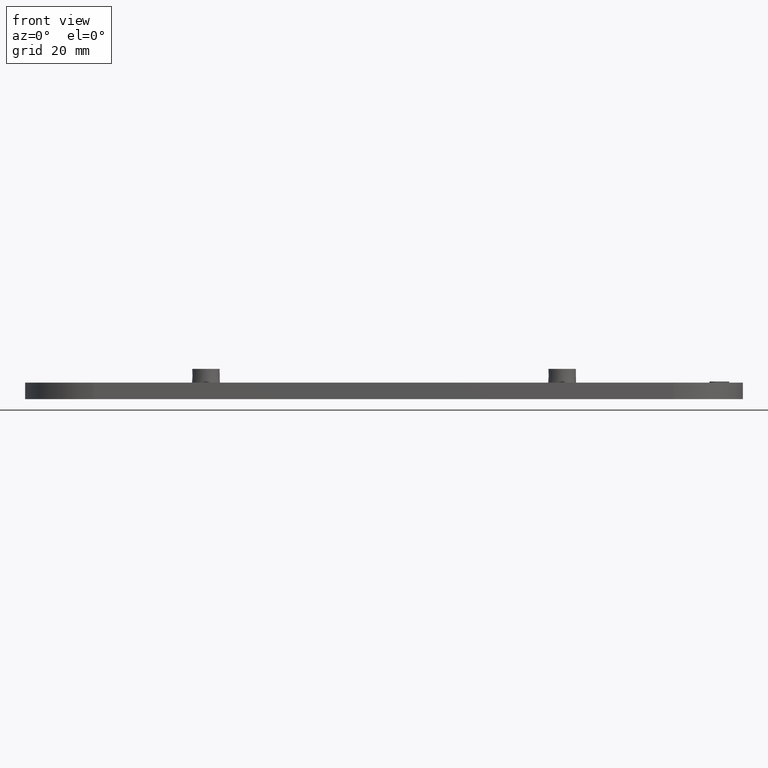
[diagram: clean part render]
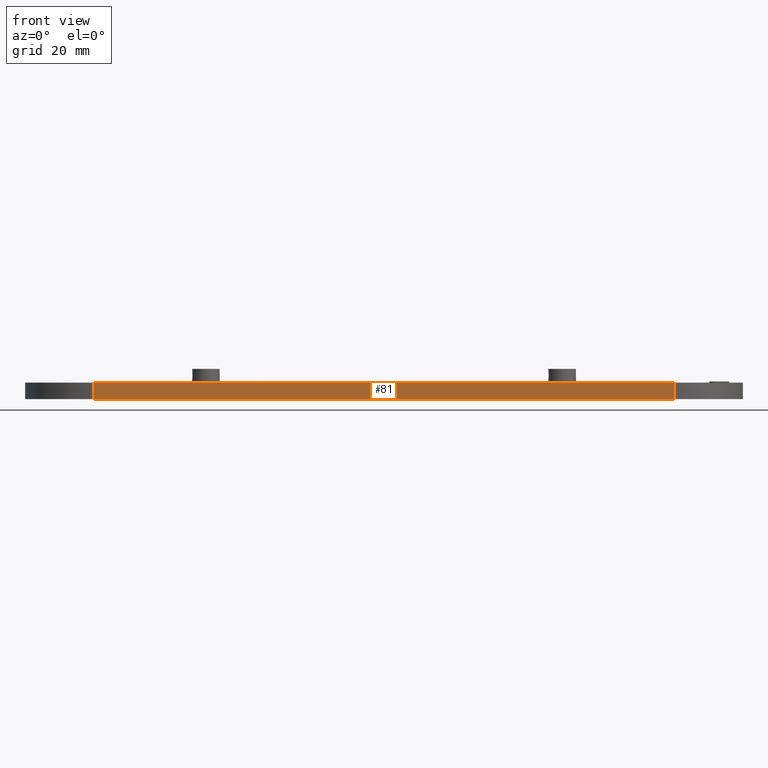
[diagram: same view with one face highlighted and labeled with its STEP entity id]
A machine part, front view. The second image highlights one B-rep face of the part: STEP entity #81.
In plain terms, the highlighted planar face has unit normal (0, 1, -0).
Its self-contained STEP definition (entity closure, byte-faithful):
#81 = ADVANCED_FACE( '', ( #168 ), #169, .F. );
#168 = FACE_OUTER_BOUND( '', #325, .T. );
#169 = PLANE( '', #326 );
#325 = EDGE_LOOP( '', ( #547, #548, #549, #550 ) );
#326 = AXIS2_PLACEMENT_3D( '', #551, #552, #553 );
#547 = ORIENTED_EDGE( '', *, *, #1051, .T. );
#548 = ORIENTED_EDGE( '', *, *, #1090, .F. );
#549 = ORIENTED_EDGE( '', *, *, #1091, .F. );
#550 = ORIENTED_EDGE( '', *, *, #1088, .T. );
#551 = CARTESIAN_POINT( '', ( 53.0000000000000, -12.5000000000000, -1.31124088366755E-014 ) );
#552 = DIRECTION( '', ( 0.000000000000000, 1.00000000000000, -6.12303176911189E-017 ) );
#553 = DIRECTION( '', ( 1.00000000000000, 0.000000000000000, 0.000000000000000 ) );
#1051 = EDGE_CURVE( '', #1251, #1249, #1252, .T. );
#1088 = EDGE_CURVE( '', #1320, #1251, #1321, .T. );
#1090 = EDGE_CURVE( '', #1323, #1249, #1324, .T. );
#1091 = EDGE_CURVE( '', #1320, #1323, #1325, .T. );
#1249 = VERTEX_POINT( '', #1561 );
#1251 = VERTEX_POINT( '', #1563 );
#1252 = LINE( '', #1564, #1565 );
#1320 = VERTEX_POINT( '', #1659 );
#1321 = LINE( '', #1660, #1661 );
#1323 = VERTEX_POINT( '', #1663 );
#1324 = LINE( '', #1664, #1665 );
#1325 = LINE( '', #1666, #1667 );
#1561 = CARTESIAN_POINT( '', ( -53.0000000000000, -12.5000000000000, 2.99999999999999 ) );
#1563 = CARTESIAN_POINT( '', ( 53.0000000000000, -12.5000000000000, 2.99999999999999 ) );
#1564 = CARTESIAN_POINT( '', ( 53.0000000000000, -12.5000000000000, 2.99999999999999 ) );
#1565 = VECTOR( '', #1985, 1000.00000000000 );
#1659 = CARTESIAN_POINT( '', ( 53.0000000000000, -12.5000000000000, -1.31124088366755E-014 ) );
#1660 = CARTESIAN_POINT( '', ( 53.0000000000000, -12.5000000000000, -1.31124088366755E-014 ) );
#1661 = VECTOR( '', #2042, 1000.00000000000 );
#1663 = CARTESIAN_POINT( '', ( -53.0000000000000, -12.5000000000000, -1.31124088366755E-014 ) );
#1664 = CARTESIAN_POINT( '', ( -53.0000000000000, -12.5000000000000, -1.31124088366755E-014 ) );
#1665 = VECTOR( '', #2046, 1000.00000000000 );
#1666 = CARTESIAN_POINT( '', ( 53.0000000000000, -12.5000000000000, -1.31124088366755E-014 ) );
#1667 = VECTOR( '', #2047, 1000.00000000000 );
#1985 = DIRECTION( '', ( -1.00000000000000, 0.000000000000000, 0.000000000000000 ) );
#2042 = DIRECTION( '', ( 0.000000000000000, 6.12303176911189E-017, 1.00000000000000 ) );
#2046 = DIRECTION( '', ( 0.000000000000000, 6.12303176911189E-017, 1.00000000000000 ) );
#2047 = DIRECTION( '', ( -1.00000000000000, 0.000000000000000, 0.000000000000000 ) );